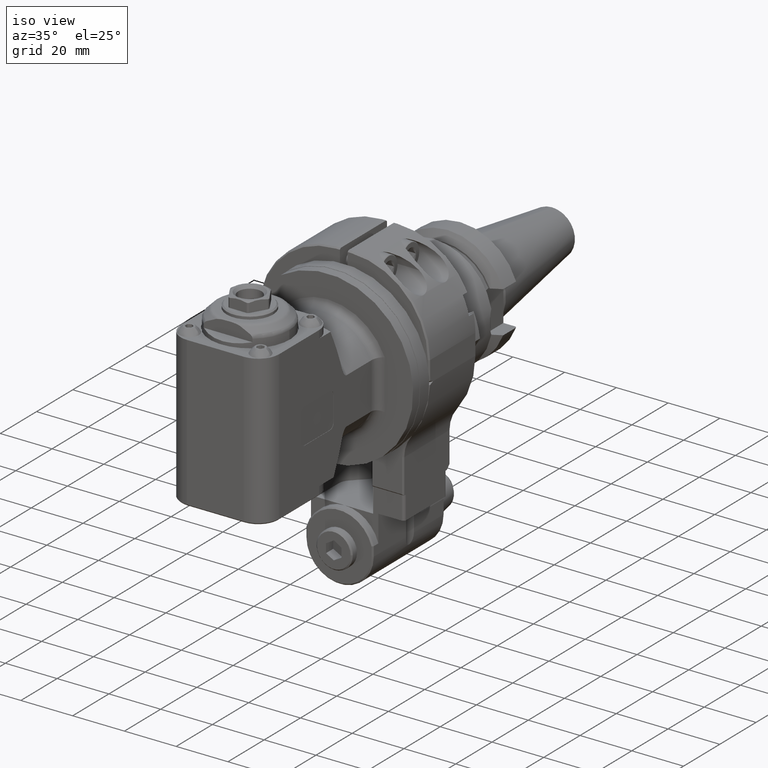
[diagram: clean part render]
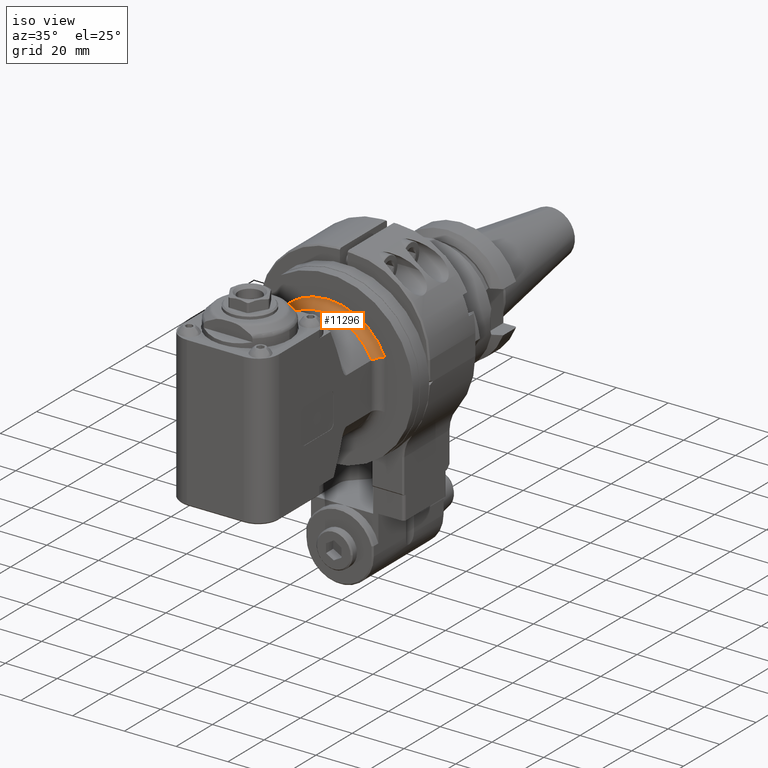
[diagram: same view with one face highlighted and labeled with its STEP entity id]
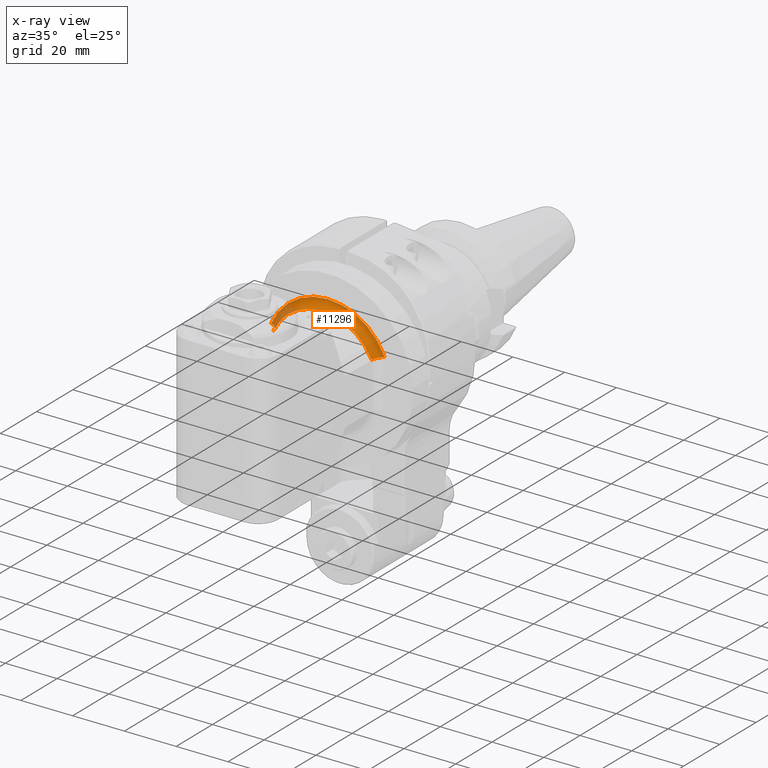
[diagram: x-ray of the same camera — body ghosted, the highlighted face saturated]
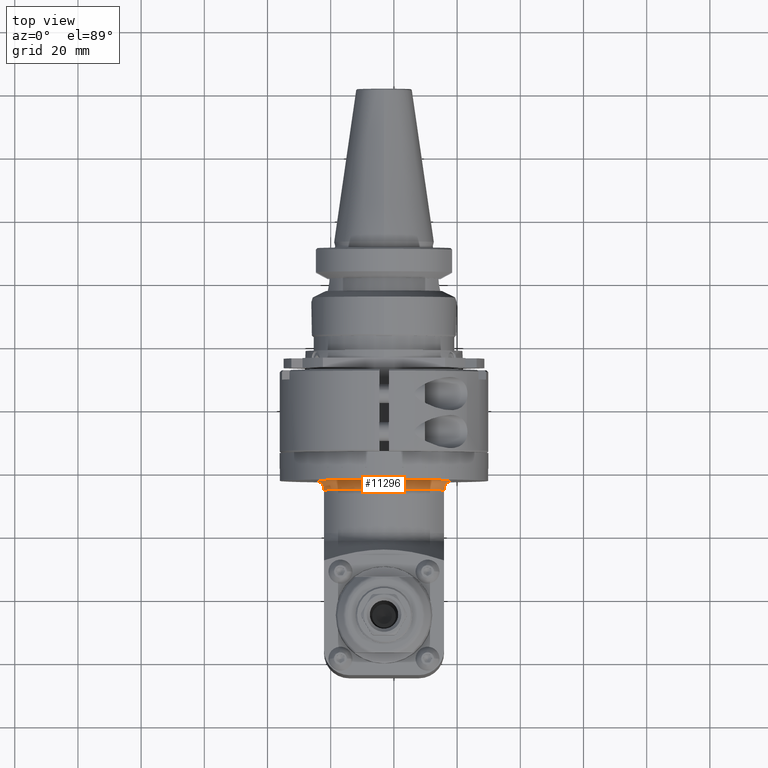
[diagram: same view with one face highlighted and labeled with its STEP entity id]
A machine part, iso view. The second image highlights one B-rep face of the part: STEP entity #11296.
The next image is the same camera in x-ray: the body ghosted, the highlighted face saturated — about 13% of this face is hidden behind the body in this view.
A second angle (top view) of the same face is appended — the face is thin or edge-on in the first view.
In plain terms, the highlighted toroidal blend (fillet) surface has major radius 24 mm and minor (blend) radius 3 mm.
Its self-contained STEP definition (entity closure, byte-faithful):
#309=TOROIDAL_SURFACE('',#12138,24.,3.);
#331=B_SPLINE_CURVE_WITH_KNOTS('',3,(#17010,#17011,#17012,#17013,#17014,
#17015,#17016,#17017,#17018,#17019,#17020,#17021,#17022,#17023),
 .UNSPECIFIED.,.F.,.F.,(4,2,2,2,2,2,4),(-0.955617137732308,-0.954796785713743,
-0.89078708537259,-0.826855829906088,-0.707820558452577,-0.591691887726395,
-0.477534127361),.UNSPECIFIED.);
#341=B_SPLINE_CURVE_WITH_KNOTS('',3,(#17316,#17317,#17318,#17319,#17320,
#17321,#17322,#17323,#17324,#17325,#17326,#17327,#17328,#17329),
 .UNSPECIFIED.,.F.,.F.,(4,2,2,2,2,2,4),(-0.000820248882293716,9.00408220205762E-15,
0.064001652922068,0.127924870831387,0.24694517694261,0.363059247749931,
0.477202655978212),.UNSPECIFIED.);
#2560=FACE_OUTER_BOUND('',#3293,.T.);
#3293=EDGE_LOOP('',(#7736,#7737,#7738,#7739));
#4103=CIRCLE('',#12071,24.);
#4137=CIRCLE('',#12137,21.);
#4731=VERTEX_POINT('',#17001);
#4733=VERTEX_POINT('',#17005);
#4734=VERTEX_POINT('',#17009);
#4754=VERTEX_POINT('',#17157);
#5850=EDGE_CURVE('',#4733,#4731,#4103,.T.);
#5851=EDGE_CURVE('',#4731,#4734,#331,.T.);
#5950=EDGE_CURVE('',#4754,#4734,#4137,.T.);
#5951=EDGE_CURVE('',#4733,#4754,#341,.T.);
#7736=ORIENTED_EDGE('',*,*,#5950,.T.);
#7737=ORIENTED_EDGE('',*,*,#5851,.F.);
#7738=ORIENTED_EDGE('',*,*,#5850,.F.);
#7739=ORIENTED_EDGE('',*,*,#5951,.T.);
#11296=ADVANCED_FACE('',(#2560),#309,.F.);
#12071=AXIS2_PLACEMENT_3D('',#17007,#13448,#13449);
#12137=AXIS2_PLACEMENT_3D('',#17314,#13629,#13630);
#12138=AXIS2_PLACEMENT_3D('',#17315,#13631,#13632);
#13448=DIRECTION('center_axis',(-1.,0.,0.));
#13449=DIRECTION('ref_axis',(0.,-0.399652626942692,-0.916666666666682));
#13629=DIRECTION('center_axis',(-1.,0.,0.));
#13630=DIRECTION('ref_axis',(0.,-1.,0.));
#13631=DIRECTION('center_axis',(-1.,0.,0.));
#13632=DIRECTION('ref_axis',(0.,-1.,-1.22464679914735E-16));
#17001=CARTESIAN_POINT('',(65.,-9.591663046625,22.));
#17005=CARTESIAN_POINT('',(65.,-9.591663046625,-22.));
#17007=CARTESIAN_POINT('Origin',(65.,0.,0.));
#17009=CARTESIAN_POINT('',(68.,-8.944271909999,19.));
#17010=CARTESIAN_POINT('Ctrl Pts',(65.,-9.59166304662542,21.9999999999999));
#17011=CARTESIAN_POINT('Ctrl Pts',(65.,-9.59110493795212,21.9973234048311));
#17012=CARTESIAN_POINT('Ctrl Pts',(65.0000035820808,-9.59054678281627,21.9946468204355));
#17013=CARTESIAN_POINT('Ctrl Pts',(65.0005697382876,-9.54643383639069,21.7831254944383));
#17014=CARTESIAN_POINT('Ctrl Pts',(65.0229354081196,-9.50270241681941,21.5748719990034));
#17015=CARTESIAN_POINT('Ctrl Pts',(65.1105440785623,-9.41637882066505,21.166582359225));
#17016=CARTESIAN_POINT('Ctrl Pts',(65.1755345999394,-9.37398267143598,20.9674692990624));
#17017=CARTESIAN_POINT('Ctrl Pts',(65.4195895211638,-9.25689078160673,20.4210559552338));
#17018=CARTESIAN_POINT('Ctrl Pts',(65.6466418635812,-9.18682487518341,20.0985595376261));
#17019=CARTESIAN_POINT('Ctrl Pts',(66.2075072142433,-9.06972871978934,19.5641588465987));
#17020=CARTESIAN_POINT('Ctrl Pts',(66.5334763728915,-9.02327979825419,19.354643722854));
#17021=CARTESIAN_POINT('Ctrl Pts',(67.2438321251294,-8.9604636059221,19.0722345944293));
#17022=CARTESIAN_POINT('Ctrl Pts',(67.6198583464039,-8.94427190999916,19.));
#17023=CARTESIAN_POINT('Ctrl Pts',(68.,-8.94427190999916,19.));
#17157=CARTESIAN_POINT('',(68.,-8.944271909999,-19.));
#17314=CARTESIAN_POINT('Origin',(68.,0.,0.));
#17315=CARTESIAN_POINT('Origin',(68.,0.,0.));
#17316=CARTESIAN_POINT('Ctrl Pts',(65.,-9.59166304662542,-21.9999999999999));
#17317=CARTESIAN_POINT('Ctrl Pts',(65.,-9.59110493795216,-21.9973234048313));
#17318=CARTESIAN_POINT('Ctrl Pts',(65.0000035820808,-9.59054678281617,-21.9946468204353));
#17319=CARTESIAN_POINT('Ctrl Pts',(65.0005697382876,-9.54643383639135,-21.7831254944348));
#17320=CARTESIAN_POINT('Ctrl Pts',(65.0229354081212,-9.50270241681596,-21.5748719989873));
#17321=CARTESIAN_POINT('Ctrl Pts',(65.1105440785712,-9.41637882065801,-21.166582359192));
#17322=CARTESIAN_POINT('Ctrl Pts',(65.1755345999536,-9.37398267142745,-20.967469299022));
#17323=CARTESIAN_POINT('Ctrl Pts',(65.4195895211907,-9.25689078159729,-20.4210559551899));
#17324=CARTESIAN_POINT('Ctrl Pts',(65.6466418636133,-9.18682487517473,-20.0985595375865));
#17325=CARTESIAN_POINT('Ctrl Pts',(66.207507214284,-9.06972871978272,-19.5641588465689));
#17326=CARTESIAN_POINT('Ctrl Pts',(66.5334763729355,-9.0232797982488,-19.3546437228296));
#17327=CARTESIAN_POINT('Ctrl Pts',(67.2438321251626,-8.96046360592066,-19.0722345944229));
#17328=CARTESIAN_POINT('Ctrl Pts',(67.6198583464209,-8.94427190999916,-19.));
#17329=CARTESIAN_POINT('Ctrl Pts',(68.,-8.94427190999916,-19.));